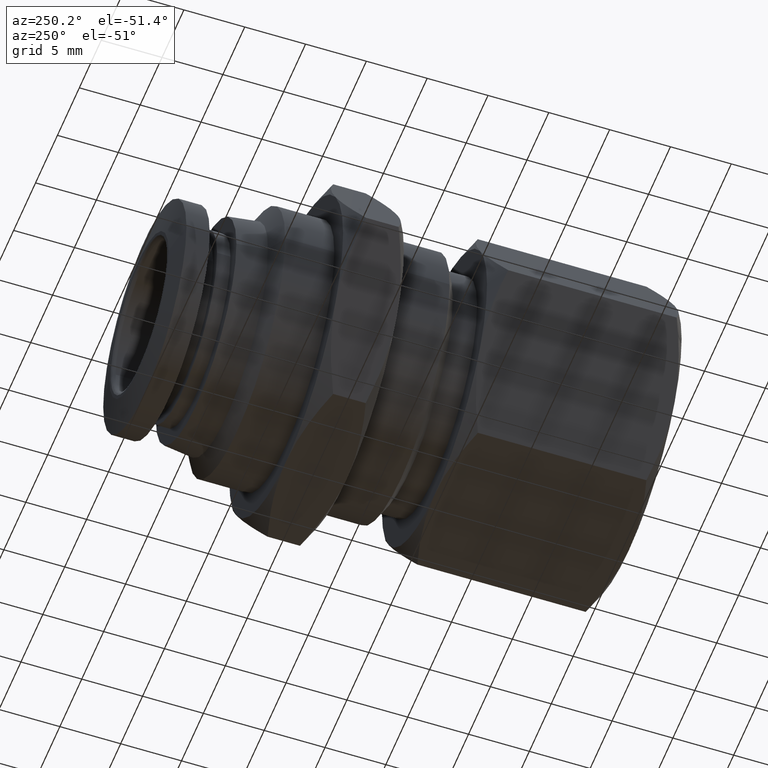
[diagram: clean part render]
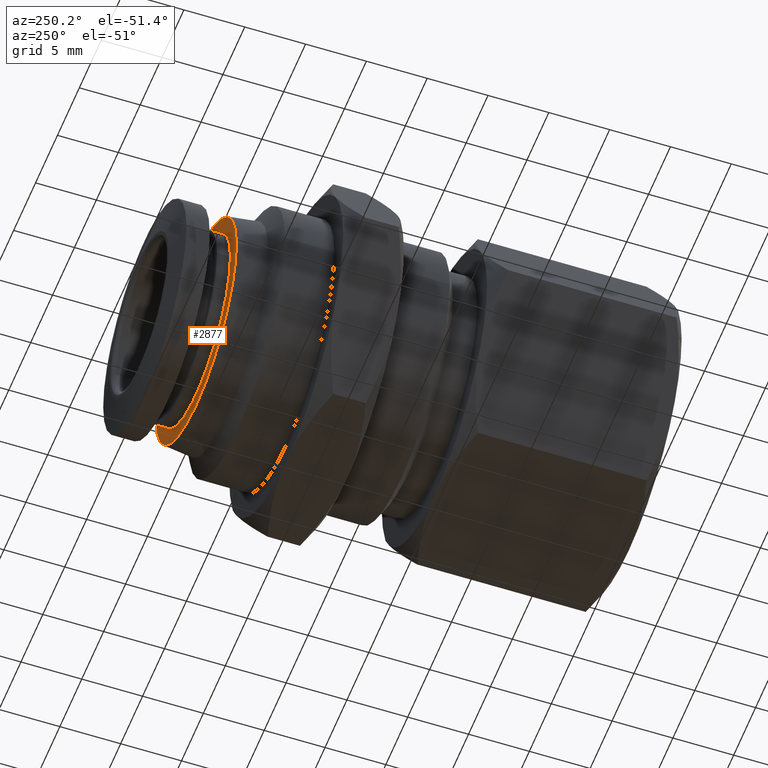
[diagram: same view with one face highlighted and labeled with its STEP entity id]
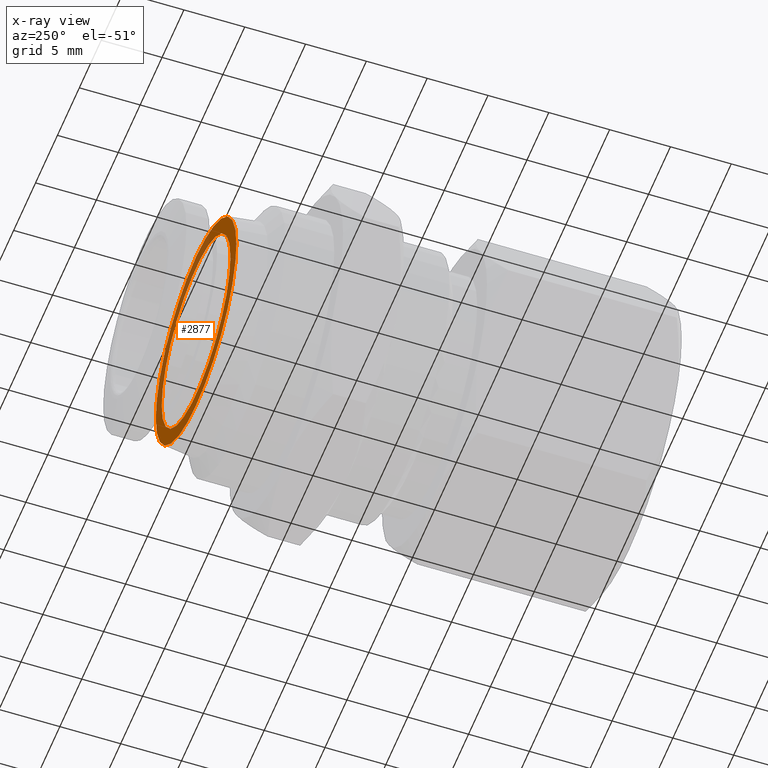
[diagram: x-ray of the same camera — body ghosted, the highlighted face saturated]
A machine part, auxiliary view. The second image highlights one B-rep face of the part: STEP entity #2877.
The next image is the same camera in x-ray: the body ghosted, the highlighted face saturated — about 32% of this face is hidden behind the body in this view.
In plain terms, the highlighted planar face has unit normal (0, 1, -0).
Its self-contained STEP definition (entity closure, byte-faithful):
#97 = AXIS2_PLACEMENT_3D ( 'NONE', #1440, #1418, #1129 ) ;
#126 = VERTEX_POINT ( 'NONE', #699 ) ;
#218 = DIRECTION ( 'NONE',  ( 1.000000000000000000, -2.952801047098946500E-013, 0.0000000000000000000 ) ) ;
#222 = CARTESIAN_POINT ( 'NONE',  ( 2.280983742125984500E-013, 0.7716535433071456400, 0.0000000000000000000 ) ) ;
#295 = EDGE_CURVE ( 'NONE', #311, #126, #867, .T. ) ;
#311 = VERTEX_POINT ( 'NONE', #3347 ) ;
#458 = ORIENTED_EDGE ( 'NONE', *, *, #2058, .T. ) ;
#524 = DIRECTION ( 'NONE',  ( 1.000000000000000000, -2.956764345042053900E-013, 0.0000000000000000000 ) ) ;
#606 = AXIS2_PLACEMENT_3D ( 'NONE', #1087, #3053, #1391 ) ;
#699 = CARTESIAN_POINT ( 'NONE',  ( -0.3622047244157071700, 0.7716535433081160900, 4.508050225205243200E-017 ) ) ;
#712 = AXIS2_PLACEMENT_3D ( 'NONE', #1490, #3419, #1771 ) ;
#867 = CIRCLE ( 'NONE', #97, 0.3622047244159352600 ) ;
#1087 = CARTESIAN_POINT ( 'NONE',  ( 0.3356299212598880000, 0.7716535433070753600, 0.0000000000000000000 ) ) ;
#1116 = FACE_BOUND ( 'NONE', #1150, .T. ) ;
#1129 = DIRECTION ( 'NONE',  ( 1.000000000000000000, -2.952801047098946500E-013, 0.0000000000000000000 ) ) ;
#1150 = EDGE_LOOP ( 'NONE', ( #3352, #2542 ) ) ;
#1161 = ORIENTED_EDGE ( 'NONE', *, *, #295, .T. ) ;
#1391 = DIRECTION ( 'NONE',  ( -1.000000000000000000, 2.955969000000000000E-013, 0.0000000000000000000 ) ) ;
#1418 = DIRECTION ( 'NONE',  ( 2.954507983349744100E-013, 1.000000000000000000, -0.0000000000000000000 ) ) ;
#1440 = CARTESIAN_POINT ( 'NONE',  ( 2.280949293246395900E-013, 0.7716535433080091700, 0.0000000000000000000 ) ) ;
#1490 = CARTESIAN_POINT ( 'NONE',  ( 2.280983742125984500E-013, 0.7716535433071456400, 0.0000000000000000000 ) ) ;
#1498 = CIRCLE ( 'NONE', #712, 0.3090551181100971700 ) ;
#1771 = DIRECTION ( 'NONE',  ( 1.000000000000000000, -2.956764345042053900E-013, 0.0000000000000000000 ) ) ;
#1956 = AXIS2_PLACEMENT_3D ( 'NONE', #222, #2258, #524 ) ;
#1980 = DIRECTION ( 'NONE',  ( 2.954507983349744100E-013, 1.000000000000000000, -0.0000000000000000000 ) ) ;
#2058 = EDGE_CURVE ( 'NONE', #126, #311, #2329, .T. ) ;
#2187 = CIRCLE ( 'NONE', #1956, 0.3090551181100971700 ) ;
#2197 = AXIS2_PLACEMENT_3D ( 'NONE', #3636, #1980, #218 ) ;
#2258 = DIRECTION ( 'NONE',  ( 2.955969000000000000E-013, 1.000000000000000000, -0.0000000000000000000 ) ) ;
#2329 = CIRCLE ( 'NONE', #2197, 0.3622047244159352600 ) ;
#2542 = ORIENTED_EDGE ( 'NONE', *, *, #3546, .F. ) ;
#2786 = EDGE_LOOP ( 'NONE', ( #1161, #458 ) ) ;
#2816 = VERTEX_POINT ( 'NONE', #2946 ) ;
#2877 = ADVANCED_FACE ( 'NONE', ( #1116, #3262 ), #3036, .T. ) ;
#2946 = CARTESIAN_POINT ( 'NONE',  ( -0.3090551181098690200, 0.7716535433072370100, 3.784833611536455300E-017 ) ) ;
#3036 = PLANE ( 'NONE',  #606 ) ;
#3053 = DIRECTION ( 'NONE',  ( 2.955969000000000000E-013, 1.000000000000000000, -0.0000000000000000000 ) ) ;
#3159 = CARTESIAN_POINT ( 'NONE',  ( 0.3090551181103252700, 0.7716535433070542700, 0.0000000000000000000 ) ) ;
#3262 = FACE_OUTER_BOUND ( 'NONE', #2786, .T. ) ;
#3347 = CARTESIAN_POINT ( 'NONE',  ( 0.3622047244161633600, 0.7716535433079022600, 0.0000000000000000000 ) ) ;
#3352 = ORIENTED_EDGE ( 'NONE', *, *, #3432, .F. ) ;
#3419 = DIRECTION ( 'NONE',  ( 2.955969000000000000E-013, 1.000000000000000000, -0.0000000000000000000 ) ) ;
#3432 = EDGE_CURVE ( 'NONE', #3608, #2816, #2187, .T. ) ;
#3546 = EDGE_CURVE ( 'NONE', #2816, #3608, #1498, .T. ) ;
#3608 = VERTEX_POINT ( 'NONE', #3159 ) ;
#3636 = CARTESIAN_POINT ( 'NONE',  ( 2.280949293246395900E-013, 0.7716535433080091700, 0.0000000000000000000 ) ) ;